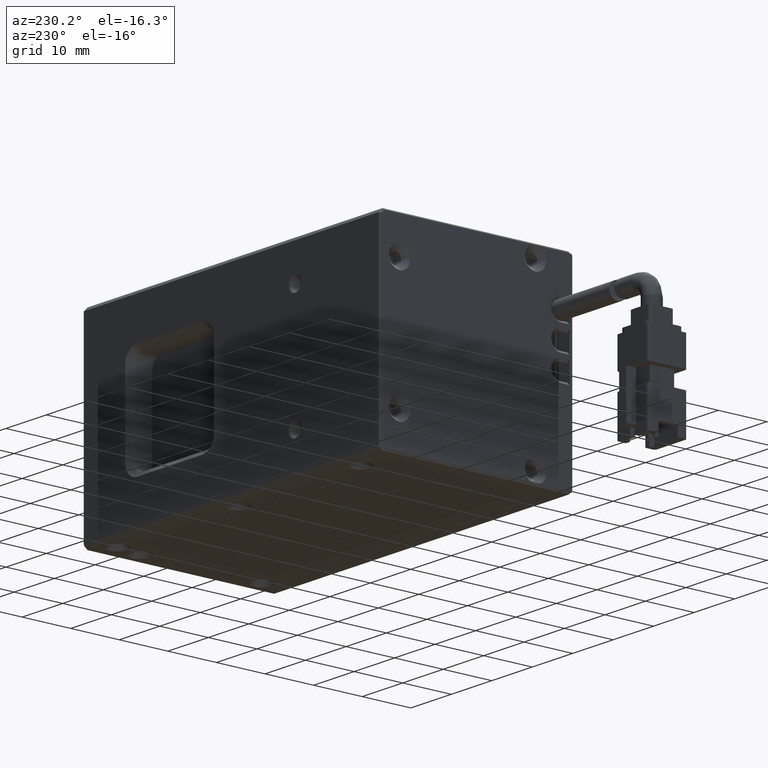
[diagram: clean part render]
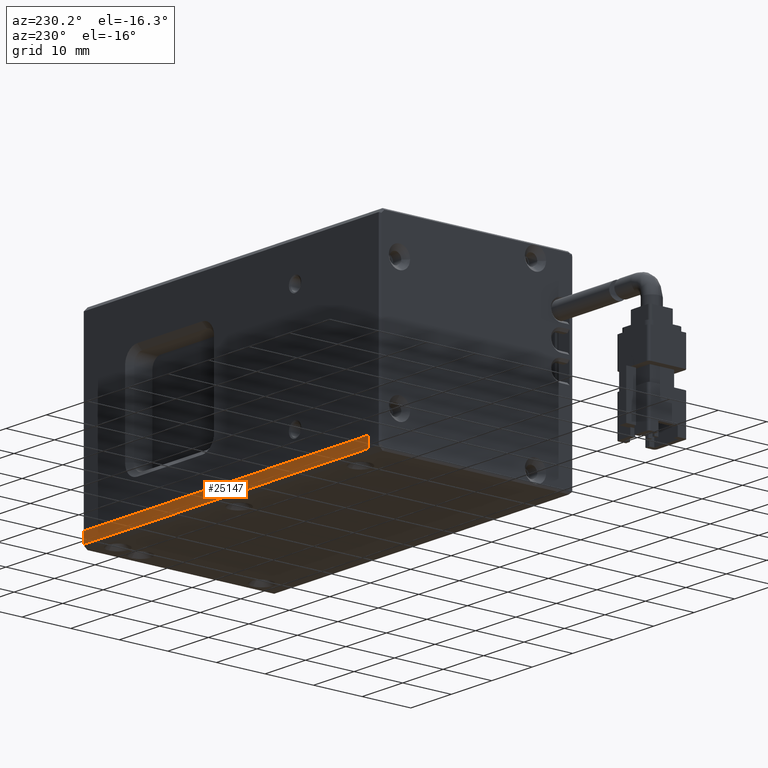
[diagram: same view with one face highlighted and labeled with its STEP entity id]
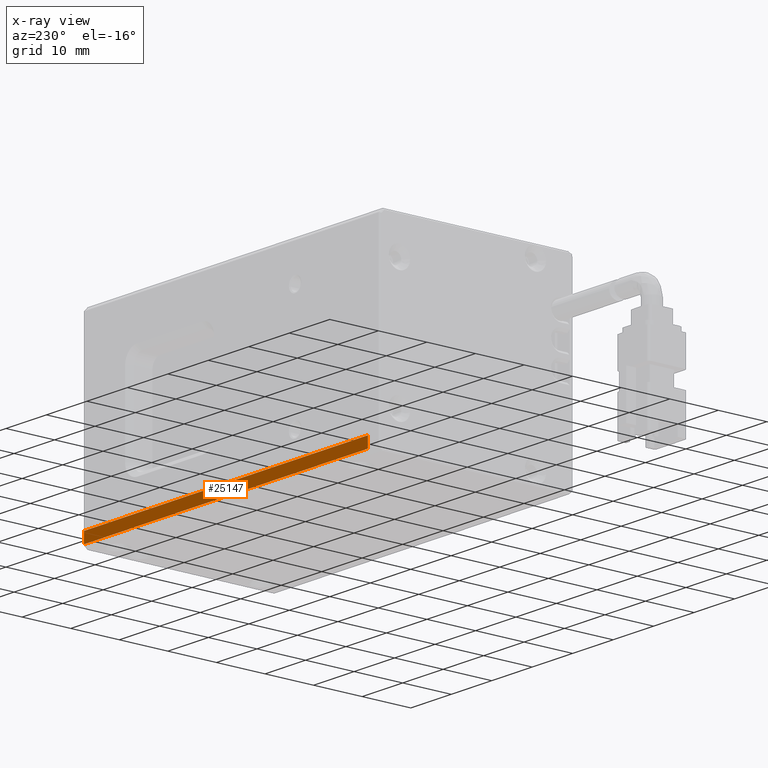
[diagram: x-ray of the same camera — body ghosted, the highlighted face saturated]
A machine part, auxiliary view. The second image highlights one B-rep face of the part: STEP entity #25147.
The next image is the same camera in x-ray: the body ghosted, the highlighted face saturated — about 0% of this face is hidden behind the body in this view.
In plain terms, the highlighted planar face has unit normal (0, -1, 0).
Its self-contained STEP definition (entity closure, byte-faithful):
#48 = CARTESIAN_POINT ( 'NONE',  ( 29.76222020198797200, 33.18138602246005300, 0.8000000000095517400 ) ) ;
#1189 = VERTEX_POINT ( 'NONE', #14050 ) ;
#1789 = ORIENTED_EDGE ( 'NONE', *, *, #4355, .T. ) ;
#1858 = AXIS2_PLACEMENT_3D ( 'NONE', #13216, #31803, #15910 ) ;
#1991 = VECTOR ( 'NONE', #18582, 1000.000000000000000 ) ;
#2575 = PLANE ( 'NONE',  #1858 ) ;
#2933 = FACE_OUTER_BOUND ( 'NONE', #33990, .T. ) ;
#3553 = VERTEX_POINT ( 'NONE', #9723 ) ;
#4355 = EDGE_CURVE ( 'NONE', #1189, #6229, #16043, .T. ) ;
#4398 = CARTESIAN_POINT ( 'NONE',  ( -41.23777979801203500, 33.18138602246005300, -0.9999999999904504200 ) ) ;
#5410 = EDGE_CURVE ( 'NONE', #18660, #3553, #13748, .T. ) ;
#6229 = VERTEX_POINT ( 'NONE', #10567 ) ;
#9723 = CARTESIAN_POINT ( 'NONE',  ( -41.23777979801203500, 33.18138602246005300, 3.000000000009549700 ) ) ;
#10567 = CARTESIAN_POINT ( 'NONE',  ( -41.23777979801204900, 33.18138602246005300, 0.8000000000095568400 ) ) ;
#10958 = EDGE_CURVE ( 'NONE', #1189, #18660, #26485, .T. ) ;
#11685 = EDGE_CURVE ( 'NONE', #6229, #3553, #13477, .T. ) ;
#13216 = CARTESIAN_POINT ( 'NONE',  ( 29.76222020198797200, 33.18138602246005300, 4.000000000009549700 ) ) ;
#13477 = LINE ( 'NONE', #4398, #33865 ) ;
#13634 = CARTESIAN_POINT ( 'NONE',  ( -1.171827362219723300, 33.18138602246005300, 3.000000000009549700 ) ) ;
#13748 = LINE ( 'NONE', #13634, #27033 ) ;
#14050 = CARTESIAN_POINT ( 'NONE',  ( 28.96222020198797500, 33.18138602246005300, 0.8000000000095509600 ) ) ;
#14330 = DIRECTION ( 'NONE',  ( -0.0000000000000000000, 0.0000000000000000000, 1.000000000000000000 ) ) ;
#15910 = DIRECTION ( 'NONE',  ( 1.000000000000000000, 1.351799925328068100E-016, 0.0000000000000000000 ) ) ;
#16043 = LINE ( 'NONE', #48, #1991 ) ;
#17738 = ORIENTED_EDGE ( 'NONE', *, *, #11685, .T. ) ;
#18582 = DIRECTION ( 'NONE',  ( -1.000000000000000000, -6.758999626640338200E-017, 6.758999626640338200E-017 ) ) ;
#18660 = VERTEX_POINT ( 'NONE', #28525 ) ;
#18988 = DIRECTION ( 'NONE',  ( -1.000000000000000000, -0.0000000000000000000, 0.0000000000000000000 ) ) ;
#24983 = CARTESIAN_POINT ( 'NONE',  ( 28.96222020198797200, 33.18138602246005300, 4.000000000009549700 ) ) ;
#25147 = ADVANCED_FACE ( 'NONE', ( #2933 ), #2575, .F. ) ;
#26485 = LINE ( 'NONE', #24983, #32720 ) ;
#26931 = ORIENTED_EDGE ( 'NONE', *, *, #10958, .F. ) ;
#27033 = VECTOR ( 'NONE', #18988, 1000.000000000000000 ) ;
#28525 = CARTESIAN_POINT ( 'NONE',  ( 28.96222020198797900, 33.18138602246005300, 3.000000000009549700 ) ) ;
#28707 = ORIENTED_EDGE ( 'NONE', *, *, #5410, .F. ) ;
#31803 = DIRECTION ( 'NONE',  ( 1.351799925328068100E-016, -1.000000000000000000, 0.0000000000000000000 ) ) ;
#32720 = VECTOR ( 'NONE', #14330, 1000.000000000000000 ) ;
#33542 = DIRECTION ( 'NONE',  ( 0.0000000000000000000, -0.0000000000000000000, 1.000000000000000000 ) ) ;
#33865 = VECTOR ( 'NONE', #33542, 1000.000000000000000 ) ;
#33990 = EDGE_LOOP ( 'NONE', ( #1789, #17738, #28707, #26931 ) ) ;